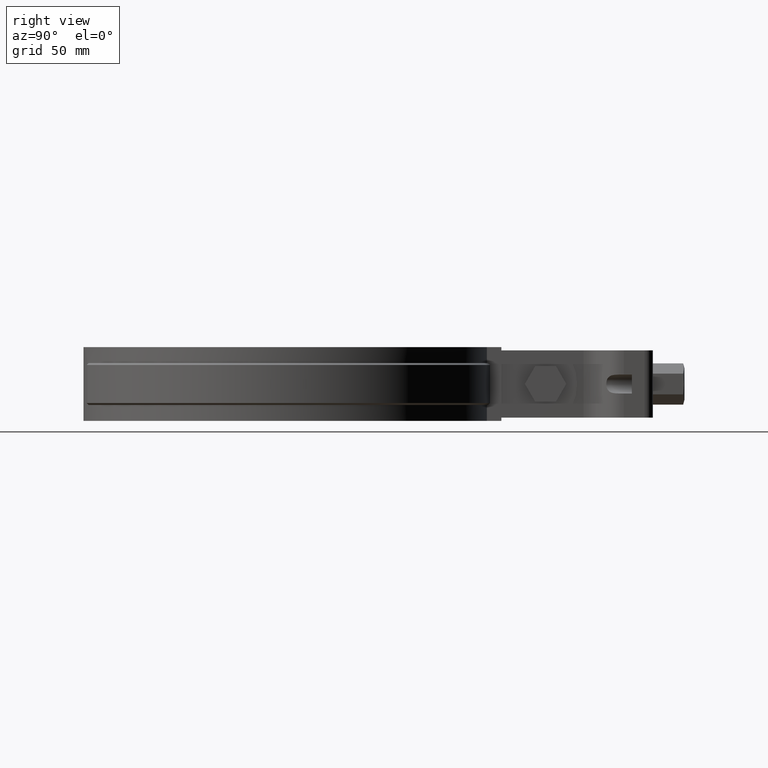
[diagram: clean part render]
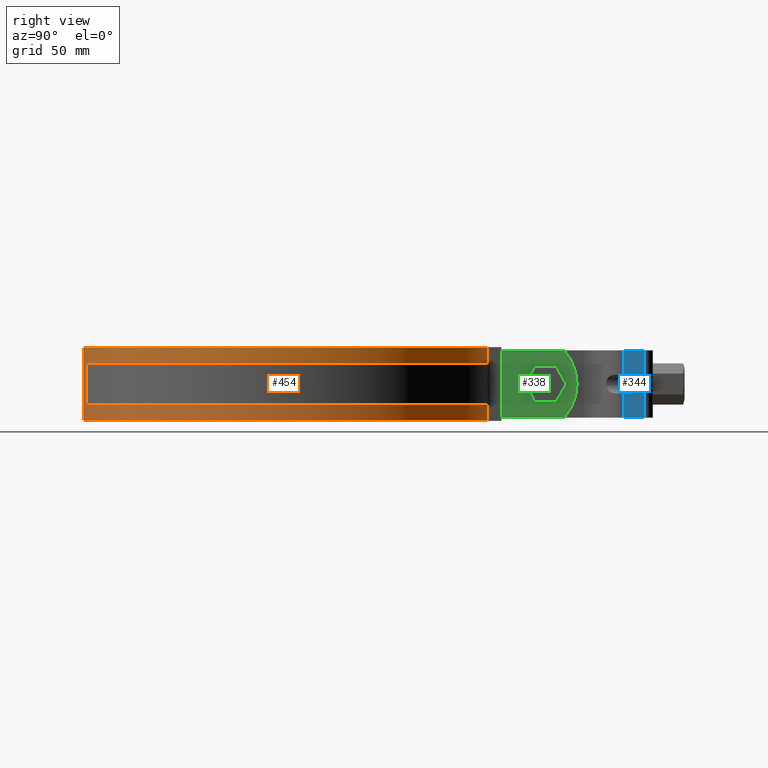
[diagram: same view with three faces highlighted in distinct colors, each labeled with its STEP entity id]
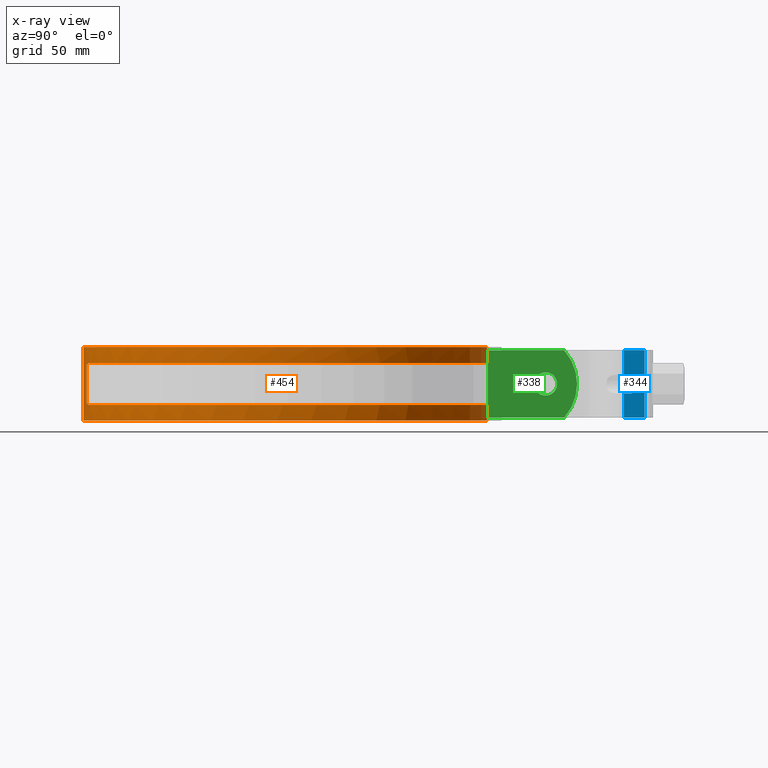
[diagram: x-ray of the same camera — body ghosted, the three highlighted faces saturated]
A machine part, right view with three faces highlighted in distinct colors.
The next image is the same camera in x-ray (body ghosted, the three faces saturated) — at least one of them is partly hidden behind the body in this view.
Their STEP definitions:

[orange] entity #454 — the highlighted cylindrical surface (partial cylindrical patch) has radius 96 mm, axis along (0, 0, -1).
#454 = ADVANCED_FACE( '', ( #806 ), #807, .T. );
#806 = FACE_OUTER_BOUND( '', #1941, .T. );
#807 = CYLINDRICAL_SURFACE( '', #1942, 96.0000000000000 );
#1941 = EDGE_LOOP( '', ( #4644, #4645, #4646, #4647, #4648, #4649, #4650, #4651, #4652, #4653, #4654, #4655, #4656, #4657, #4658, #4659 ) );
#1942 = AXIS2_PLACEMENT_3D( '', #4660, #4661, #4662 );
#4644 = ORIENTED_EDGE( '', *, *, #5353, .T. );
#4645 = ORIENTED_EDGE( '', *, *, #5354, .T. );
#4646 = ORIENTED_EDGE( '', *, *, #5355, .T. );
#4647 = ORIENTED_EDGE( '', *, *, #5356, .T. );
#4648 = ORIENTED_EDGE( '', *, *, #5357, .T. );
#4649 = ORIENTED_EDGE( '', *, *, #5358, .F. );
#4650 = ORIENTED_EDGE( '', *, *, #5359, .T. );
#4651 = ORIENTED_EDGE( '', *, *, #5360, .F. );
#4652 = ORIENTED_EDGE( '', *, *, #5341, .F. );
#4653 = ORIENTED_EDGE( '', *, *, #5361, .T. );
#4654 = ORIENTED_EDGE( '', *, *, #5362, .T. );
#4655 = ORIENTED_EDGE( '', *, *, #5363, .F. );
#4656 = ORIENTED_EDGE( '', *, *, #5364, .T. );
#4657 = ORIENTED_EDGE( '', *, *, #5365, .F. );
#4658 = ORIENTED_EDGE( '', *, *, #5345, .F. );
#4659 = ORIENTED_EDGE( '', *, *, #5366, .T. );
#4660 = CARTESIAN_POINT( '', ( 0.000000000000000, 6.93889390390723E-014, -33.5000000000000 ) );
#4661 = DIRECTION( '', ( 0.000000000000000, 0.000000000000000, -1.00000000000000 ) );
#4662 = DIRECTION( '', ( 0.000000000000000, 1.00000000000000, 0.000000000000000 ) );
#5341 = EDGE_CURVE( '', #6074, #6076, #6077, .T. );
#5345 = EDGE_CURVE( '', #6082, #6069, #6084, .T. );
#5353 = EDGE_CURVE( '', #6095, #6096, #6097, .T. );
#5354 = EDGE_CURVE( '', #6096, #6098, #6099, .T. );
#5355 = EDGE_CURVE( '', #6098, #6100, #6101, .T. );
#5356 = EDGE_CURVE( '', #6100, #6102, #6103, .T. );
#5357 = EDGE_CURVE( '', #6102, #6104, #6105, .F. );
#5358 = EDGE_CURVE( '', #6106, #6104, #6107, .T. );
#5359 = EDGE_CURVE( '', #6106, #6108, #6109, .T. );
#5360 = EDGE_CURVE( '', #6076, #6108, #6110, .T. );
#5361 = EDGE_CURVE( '', #6074, #6111, #6112, .T. );
#5362 = EDGE_CURVE( '', #6111, #6113, #6114, .F. );
#5363 = EDGE_CURVE( '', #6115, #6113, #6116, .T. );
#5364 = EDGE_CURVE( '', #6115, #6117, #6118, .T. );
#5365 = EDGE_CURVE( '', #6069, #6117, #6119, .T. );
#5366 = EDGE_CURVE( '', #6082, #6095, #6120, .T. );
#6069 = VERTEX_POINT( '', #9351 );
#6074 = VERTEX_POINT( '', #9361 );
#6076 = VERTEX_POINT( '', #9364 );
#6077 = LINE( '', #9365, #9366 );
#6082 = VERTEX_POINT( '', #9373 );
#6084 = LINE( '', #9376, #9377 );
#6095 = VERTEX_POINT( '', #9395 );
#6096 = VERTEX_POINT( '', #9396 );
#6097 = LINE( '', #9397, #9398 );
#6098 = VERTEX_POINT( '', #9399 );
#6099 = CIRCLE( '', #9400, 96.0000000000000 );
#6100 = VERTEX_POINT( '', #9401 );
#6101 = ELLIPSE( '', #9402, 135.764501987817, 96.0000000000000 );
#6102 = VERTEX_POINT( '', #9403 );
#6103 = LINE( '', #9404, #9405 );
#6104 = VERTEX_POINT( '', #9406 );
#6105 = ELLIPSE( '', #9407, 135.764501987817, 96.0000000000000 );
#6106 = VERTEX_POINT( '', #9408 );
#6107 = CIRCLE( '', #9409, 96.0000000000000 );
#6108 = VERTEX_POINT( '', #9410 );
#6109 = LINE( '', #9411, #9412 );
#6110 = CIRCLE( '', #9413, 96.0000000000000 );
#6111 = VERTEX_POINT( '', #9414 );
#6112 = CIRCLE( '', #9415, 96.0000000000000 );
#6113 = VERTEX_POINT( '', #9416 );
#6114 = ELLIPSE( '', #9417, 135.764501987817, 96.0000000000000 );
#6115 = VERTEX_POINT( '', #9418 );
#6116 = LINE( '', #9419, #9420 );
#6117 = VERTEX_POINT( '', #9421 );
#6118 = ELLIPSE( '', #9422, 135.764501987817, 96.0000000000000 );
#6119 = CIRCLE( '', #9423, 96.0000000000000 );
#6120 = CIRCLE( '', #9424, 96.0000000000000 );
#9351 = CARTESIAN_POINT( '', ( -8.40000000000003, 95.6317938763044, -26.0000000000000 ) );
#9361 = CARTESIAN_POINT( '', ( -8.40000000000003, 95.6317938763044, -6.00000000000000 ) );
#9364 = CARTESIAN_POINT( '', ( -8.40000000000000, 95.6317938763045, 1.50000000000000 ) );
#9365 = CARTESIAN_POINT( '', ( -8.40000000000000, 95.6317938763045, -33.5000000000000 ) );
#9366 = VECTOR( '', #10083, 1000.00000000000 );
#9373 = CARTESIAN_POINT( '', ( -8.40000000000000, 95.6317938763045, -33.5000000000000 ) );
#9376 = CARTESIAN_POINT( '', ( -8.40000000000000, 95.6317938763045, -33.5000000000000 ) );
#9377 = VECTOR( '', #10087, 1000.00000000000 );
#9395 = CARTESIAN_POINT( '', ( 8.39999999999995, 95.6317938763046, -33.5000000000000 ) );
#9396 = CARTESIAN_POINT( '', ( 8.39999999999995, 95.6317938763046, -26.0000000000000 ) );
#9397 = CARTESIAN_POINT( '', ( 8.39999999999995, 95.6317938763046, -33.5000000000000 ) );
#9398 = VECTOR( '', #10095, 1000.00000000000 );
#9399 = CARTESIAN_POINT( '', ( 21.7657988596790, -93.5000000000000, -26.0000000000000 ) );
#9400 = AXIS2_PLACEMENT_3D( '', #10096, #10097, #10098 );
#9401 = CARTESIAN_POINT( '', ( 16.9041415043769, -94.5000000000000, -25.0000000000000 ) );
#9402 = AXIS2_PLACEMENT_3D( '', #10099, #10100, #10101 );
#9403 = CARTESIAN_POINT( '', ( 16.9041415043769, -94.5000000000000, -7.00000000000000 ) );
#9404 = CARTESIAN_POINT( '', ( 16.9041415043769, -94.5000000000000, -26.0000000000000 ) );
#9405 = VECTOR( '', #10102, 1000.00000000000 );
#9406 = CARTESIAN_POINT( '', ( 21.7657988596790, -93.5000000000000, -6.00000000000000 ) );
#9407 = AXIS2_PLACEMENT_3D( '', #10103, #10104, #10105 );
#9408 = CARTESIAN_POINT( '', ( 8.40000000000001, 95.6317938763045, -6.00000000000000 ) );
#9409 = AXIS2_PLACEMENT_3D( '', #10106, #10107, #10108 );
#9410 = CARTESIAN_POINT( '', ( 8.39999999999995, 95.6317938763046, 1.50000000000000 ) );
#9411 = CARTESIAN_POINT( '', ( 8.39999999999995, 95.6317938763046, -33.5000000000000 ) );
#9412 = VECTOR( '', #10109, 1000.00000000000 );
#9413 = AXIS2_PLACEMENT_3D( '', #10110, #10111, #10112 );
#9414 = CARTESIAN_POINT( '', ( -21.7657988596791, -93.5000000000000, -6.00000000000000 ) );
#9415 = AXIS2_PLACEMENT_3D( '', #10113, #10114, #10115 );
#9416 = CARTESIAN_POINT( '', ( -16.9041415043770, -94.5000000000000, -7.00000000000000 ) );
#9417 = AXIS2_PLACEMENT_3D( '', #10116, #10117, #10118 );
#9418 = CARTESIAN_POINT( '', ( -16.9041415043770, -94.5000000000000, -25.0000000000000 ) );
#9419 = CARTESIAN_POINT( '', ( -16.9041415043770, -94.5000000000000, -26.0000000000000 ) );
#9420 = VECTOR( '', #10119, 1000.00000000000 );
#9421 = CARTESIAN_POINT( '', ( -21.7657988596791, -93.5000000000000, -26.0000000000000 ) );
#9422 = AXIS2_PLACEMENT_3D( '', #10120, #10121, #10122 );
#9423 = AXIS2_PLACEMENT_3D( '', #10123, #10124, #10125 );
#9424 = AXIS2_PLACEMENT_3D( '', #10126, #10127, #10128 );
#10083 = DIRECTION( '', ( 0.000000000000000, 0.000000000000000, 1.00000000000000 ) );
#10087 = DIRECTION( '', ( 0.000000000000000, 0.000000000000000, 1.00000000000000 ) );
#10095 = DIRECTION( '', ( 0.000000000000000, 0.000000000000000, 1.00000000000000 ) );
#10096 = CARTESIAN_POINT( '', ( 0.000000000000000, 0.000000000000000, -26.0000000000000 ) );
#10097 = DIRECTION( '', ( 0.000000000000000, 0.000000000000000, -1.00000000000000 ) );
#10098 = DIRECTION( '', ( 1.00000000000000, -5.55111512312578E-017, 0.000000000000000 ) );
#10099 = CARTESIAN_POINT( '', ( 0.000000000000000, 6.93889390390723E-014, -119.500000000000 ) );
#10100 = DIRECTION( '', ( 0.000000000000000, -0.707106781186548, -0.707106781186548 ) );
#10101 = DIRECTION( '', ( 0.000000000000000, -0.707106781186547, 0.707106781186547 ) );
#10102 = DIRECTION( '', ( 0.000000000000000, 0.000000000000000, 1.00000000000000 ) );
#10103 = CARTESIAN_POINT( '', ( 0.000000000000000, 6.93889390390723E-014, 87.4999999999999 ) );
#10104 = DIRECTION( '', ( 0.000000000000000, 0.707106781186547, -0.707106781186548 ) );
#10105 = DIRECTION( '', ( 0.000000000000000, 0.707106781186548, 0.707106781186547 ) );
#10106 = CARTESIAN_POINT( '', ( 0.000000000000000, 0.000000000000000, -6.00000000000000 ) );
#10107 = DIRECTION( '', ( 0.000000000000000, 0.000000000000000, -1.00000000000000 ) );
#10108 = DIRECTION( '', ( 1.00000000000000, -5.55111512312578E-017, 0.000000000000000 ) );
#10109 = DIRECTION( '', ( 0.000000000000000, 0.000000000000000, 1.00000000000000 ) );
#10110 = CARTESIAN_POINT( '', ( 0.000000000000000, 6.93889390390723E-014, 1.50000000000000 ) );
#10111 = DIRECTION( '', ( 0.000000000000000, 0.000000000000000, 1.00000000000000 ) );
#10112 = DIRECTION( '', ( 1.00000000000000, 0.000000000000000, 0.000000000000000 ) );
#10113 = CARTESIAN_POINT( '', ( -1.73472347597681E-014, -5.55111512312578E-014, -6.00000000000000 ) );
#10114 = DIRECTION( '', ( 0.000000000000000, 0.000000000000000, 1.00000000000000 ) );
#10115 = DIRECTION( '', ( 1.00000000000000, -1.66533453693773E-016, 0.000000000000000 ) );
#10116 = CARTESIAN_POINT( '', ( 0.000000000000000, 6.93889390390723E-014, 87.4999999999999 ) );
#10117 = DIRECTION( '', ( 0.000000000000000, 0.707106781186547, -0.707106781186548 ) );
#10118 = DIRECTION( '', ( 0.000000000000000, 0.707106781186548, 0.707106781186547 ) );
#10119 = DIRECTION( '', ( 0.000000000000000, 0.000000000000000, 1.00000000000000 ) );
#10120 = CARTESIAN_POINT( '', ( 0.000000000000000, 6.93889390390723E-014, -119.500000000000 ) );
#10121 = DIRECTION( '', ( 0.000000000000000, -0.707106781186548, -0.707106781186548 ) );
#10122 = DIRECTION( '', ( 0.000000000000000, -0.707106781186547, 0.707106781186547 ) );
#10123 = CARTESIAN_POINT( '', ( -1.73472347597681E-014, -5.55111512312578E-014, -26.0000000000000 ) );
#10124 = DIRECTION( '', ( 0.000000000000000, 0.000000000000000, 1.00000000000000 ) );
#10125 = DIRECTION( '', ( 1.00000000000000, -1.66533453693773E-016, 0.000000000000000 ) );
#10126 = CARTESIAN_POINT( '', ( 0.000000000000000, 6.93889390390723E-014, -33.5000000000000 ) );
#10127 = DIRECTION( '', ( 0.000000000000000, 0.000000000000000, 1.00000000000000 ) );
#10128 = DIRECTION( '', ( 1.00000000000000, 0.000000000000000, 0.000000000000000 ) );

[blue] entity #344 — the highlighted planar face has unit normal (1, 0, 0).
#344 = ADVANCED_FACE( '', ( #558 ), #559, .T. );
#558 = FACE_OUTER_BOUND( '', #1320, .T. );
#559 = PLANE( '', #1321 );
#1320 = EDGE_LOOP( '', ( #3003, #3004, #3005, #3006, #3007, #3008, #3009, #3010 ) );
#1321 = AXIS2_PLACEMENT_3D( '', #3011, #3012, #3013 );
#3003 = ORIENTED_EDGE( '', *, *, #5046, .F. );
#3004 = ORIENTED_EDGE( '', *, *, #5047, .T. );
#3005 = ORIENTED_EDGE( '', *, *, #5048, .F. );
#3006 = ORIENTED_EDGE( '', *, *, #5049, .F. );
#3007 = ORIENTED_EDGE( '', *, *, #5050, .F. );
#3008 = ORIENTED_EDGE( '', *, *, #5051, .T. );
#3009 = ORIENTED_EDGE( '', *, *, #5043, .T. );
#3010 = ORIENTED_EDGE( '', *, *, #5052, .F. );
#3011 = CARTESIAN_POINT( '', ( 17.4999999999997, 160.704015965514, -31.9999999999856 ) );
#3012 = DIRECTION( '', ( 1.00000000000000, 2.34062543713590E-016, 9.11521279052745E-016 ) );
#3013 = DIRECTION( '', ( 2.34062543713430E-016, -1.00000000000000, 1.75137682134619E-013 ) );
#5043 = EDGE_CURVE( '', #5569, #5566, #5570, .T. );
#5046 = EDGE_CURVE( '', #5574, #5575, #5576, .T. );
#5047 = EDGE_CURVE( '', #5574, #5577, #5578, .T. );
#5048 = EDGE_CURVE( '', #5579, #5577, #5580, .T. );
#5049 = EDGE_CURVE( '', #5581, #5579, #5582, .T. );
#5050 = EDGE_CURVE( '', #5583, #5581, #5584, .T. );
#5051 = EDGE_CURVE( '', #5583, #5569, #5585, .T. );
#5052 = EDGE_CURVE( '', #5575, #5566, #5586, .T. );
#5566 = VERTEX_POINT( '', #7432 );
#5569 = VERTEX_POINT( '', #7435 );
#5570 = LINE( '', #7436, #7437 );
#5574 = VERTEX_POINT( '', #7442 );
#5575 = VERTEX_POINT( '', #7443 );
#5576 = LINE( '', #7444, #7445 );
#5577 = VERTEX_POINT( '', #7446 );
#5578 = LINE( '', #7447, #7448 );
#5579 = VERTEX_POINT( '', #7449 );
#5580 = LINE( '', #7450, #7451 );
#5581 = VERTEX_POINT( '', #7452 );
#5582 = LINE( '', #7453, #7454 );
#5583 = VERTEX_POINT( '', #7455 );
#5584 = LINE( '', #7456, #7457 );
#5585 = LINE( '', #7458, #7459 );
#5586 = LINE( '', #7460, #7461 );
#7432 = CARTESIAN_POINT( '', ( 17.4999999999996, 170.498345459997, -1.29063426612635E-012 ) );
#7435 = CARTESIAN_POINT( '', ( 17.4999999999997, 170.498345459992, -31.9999999999873 ) );
#7436 = CARTESIAN_POINT( '', ( 17.4999999999997, 170.498345459992, -31.9999999999873 ) );
#7437 = VECTOR( '', #9662, 999.999999999867 );
#7442 = CARTESIAN_POINT( '', ( 17.4999999999996, 160.704015965517, -11.4999999999946 ) );
#7443 = CARTESIAN_POINT( '', ( 17.4999999999996, 160.704015965519, 4.23272528138212E-013 ) );
#7444 = CARTESIAN_POINT( '', ( 17.4999999999997, 160.704015965514, -31.9999999999856 ) );
#7445 = VECTOR( '', #9667, 999.999999999867 );
#7446 = CARTESIAN_POINT( '', ( 17.4999999999997, 164.498345459998, -11.4999999999952 ) );
#7447 = CARTESIAN_POINT( '', ( 17.4999999999997, 149.498345460005, -11.4999999999926 ) );
#7448 = VECTOR( '', #9668, 999.999999999848 );
#7449 = CARTESIAN_POINT( '', ( 17.4999999999997, 164.498345459997, -20.4999999999913 ) );
#7450 = CARTESIAN_POINT( '', ( 17.4999999999997, 164.498345459995, -31.9999999999863 ) );
#7451 = VECTOR( '', #9669, 999.999999999867 );
#7452 = CARTESIAN_POINT( '', ( 17.4999999999997, 160.704015965516, -20.4999999999906 ) );
#7453 = CARTESIAN_POINT( '', ( 17.4999999999997, 149.498345460003, -20.4999999999887 ) );
#7454 = VECTOR( '', #9670, 999.999999999848 );
#7455 = CARTESIAN_POINT( '', ( 17.4999999999997, 160.704015965514, -31.9999999999856 ) );
#7456 = CARTESIAN_POINT( '', ( 17.4999999999997, 160.704015965514, -31.9999999999856 ) );
#7457 = VECTOR( '', #9671, 999.999999999867 );
#7458 = CARTESIAN_POINT( '', ( 17.4999999999997, 160.704015965514, -31.9999999999856 ) );
#7459 = VECTOR( '', #9672, 999.999999999848 );
#7460 = CARTESIAN_POINT( '', ( 17.4999999999996, 160.704015965519, 4.23272528138212E-013 ) );
#7461 = VECTOR( '', #9673, 999.999999999848 );
#9662 = DIRECTION( '', ( -9.11521279052786E-016, 1.75137682134619E-013, 1.00000000000000 ) );
#9667 = DIRECTION( '', ( -9.11521279052786E-016, 1.75137682134619E-013, 1.00000000000000 ) );
#9668 = DIRECTION( '', ( -3.03451482752472E-016, 1.00000000000000, -1.75321373087693E-013 ) );
#9669 = DIRECTION( '', ( -9.11521279052786E-016, 1.75321373087693E-013, 1.00000000000000 ) );
#9670 = DIRECTION( '', ( -3.03451482752472E-016, 1.00000000000000, -1.75321373087693E-013 ) );
#9671 = DIRECTION( '', ( -9.11521279052786E-016, 1.75137682134619E-013, 1.00000000000000 ) );
#9672 = DIRECTION( '', ( -2.34062543713370E-016, 1.00000000000000, -1.75137682134619E-013 ) );
#9673 = DIRECTION( '', ( -2.34062543713370E-016, 1.00000000000000, -1.75137682134619E-013 ) );

[green] entity #338 — the highlighted planar face has unit normal (1, 0, 0).
#338 = ADVANCED_FACE( '', ( #543, #544 ), #545, .T. );
#543 = FACE_BOUND( '', #1305, .T. );
#544 = FACE_OUTER_BOUND( '', #1306, .T. );
#545 = PLANE( '', #1307 );
#1305 = EDGE_LOOP( '', ( #2964 ) );
#1306 = EDGE_LOOP( '', ( #2965, #2966, #2967, #2968 ) );
#1307 = AXIS2_PLACEMENT_3D( '', #2969, #2970, #2971 );
#2964 = ORIENTED_EDGE( '', *, *, #5036, .F. );
#2965 = ORIENTED_EDGE( '', *, *, #4972, .T. );
#2966 = ORIENTED_EDGE( '', *, *, #5035, .T. );
#2967 = ORIENTED_EDGE( '', *, *, #5023, .F. );
#2968 = ORIENTED_EDGE( '', *, *, #5037, .T. );
#2969 = CARTESIAN_POINT( '', ( 6.50000000000000, 138.484766009556, 0.000000000000000 ) );
#2970 = DIRECTION( '', ( 1.00000000000000, 6.07153216591882E-017, 0.000000000000000 ) );
#2971 = DIRECTION( '', ( 6.07153216591882E-017, -1.00000000000000, 0.000000000000000 ) );
#4972 = EDGE_CURVE( '', #5450, #5448, #5451, .T. );
#5023 = EDGE_CURVE( '', #5537, #5539, #5540, .T. );
#5035 = EDGE_CURVE( '', #5448, #5539, #5554, .F. );
#5036 = EDGE_CURVE( '', #5555, #5555, #5556, .T. );
#5037 = EDGE_CURVE( '', #5537, #5450, #5557, .T. );
#5448 = VERTEX_POINT( '', #6235 );
#5450 = VERTEX_POINT( '', #6237 );
#5451 = LINE( '', #6238, #6239 );
#5537 = VERTEX_POINT( '', #7374 );
#5539 = VERTEX_POINT( '', #7377 );
#5540 = LINE( '', #7378, #7379 );
#5554 = LINE( '', #7400, #7401 );
#5555 = VERTEX_POINT( '', #7402 );
#5556 = CIRCLE( '', #7403, 5.50000000000000 );
#5557 = CIRCLE( '', #7404, 24.0000000000000 );
#6235 = CARTESIAN_POINT( '', ( 6.50000000000000, 96.0793942528782, 0.000000000000000 ) );
#6237 = CARTESIAN_POINT( '', ( 6.50000000000001, 132.373309829554, -4.33680868994202E-016 ) );
#6238 = CARTESIAN_POINT( '', ( 6.50000000000000, 138.484766009556, 0.000000000000000 ) );
#6239 = VECTOR( '', #9578, 1000.00000000000 );
#7374 = CARTESIAN_POINT( '', ( 6.50000000000001, 132.373309829554, -32.0000000000000 ) );
#7377 = CARTESIAN_POINT( '', ( 6.50000000000000, 96.0793942528782, -32.0000000000000 ) );
#7378 = CARTESIAN_POINT( '', ( 6.50000000000000, 138.484766009556, -32.0000000000000 ) );
#7379 = VECTOR( '', #9627, 1000.00000000000 );
#7400 = CARTESIAN_POINT( '', ( 6.50000000000000, 96.0793942528782, -32.0000000000000 ) );
#7401 = VECTOR( '', #9647, 1000.00000000000 );
#7402 = CARTESIAN_POINT( '', ( 6.50000000000000, 128.984766009556, -16.0000000000000 ) );
#7403 = AXIS2_PLACEMENT_3D( '', #9648, #9649, #9650 );
#7404 = AXIS2_PLACEMENT_3D( '', #9651, #9652, #9653 );
#9578 = DIRECTION( '', ( 6.07153216591882E-017, -1.00000000000000, 0.000000000000000 ) );
#9627 = DIRECTION( '', ( 6.07153216591882E-017, -1.00000000000000, 0.000000000000000 ) );
#9647 = DIRECTION( '', ( 0.000000000000000, 0.000000000000000, 1.00000000000000 ) );
#9648 = CARTESIAN_POINT( '', ( 6.50000000000000, 123.484766009556, -16.0000000000000 ) );
#9649 = DIRECTION( '', ( 1.00000000000000, 6.07153216591882E-017, 0.000000000000000 ) );
#9650 = DIRECTION( '', ( -6.07153216591882E-017, 1.00000000000000, 0.000000000000000 ) );
#9651 = CARTESIAN_POINT( '', ( 6.50000000000001, 114.484766009556, -16.0000000000000 ) );
#9652 = DIRECTION( '', ( 1.00000000000000, 6.07153216591882E-017, 0.000000000000000 ) );
#9653 = DIRECTION( '', ( -6.07153216591882E-017, 1.00000000000000, 0.000000000000000 ) );